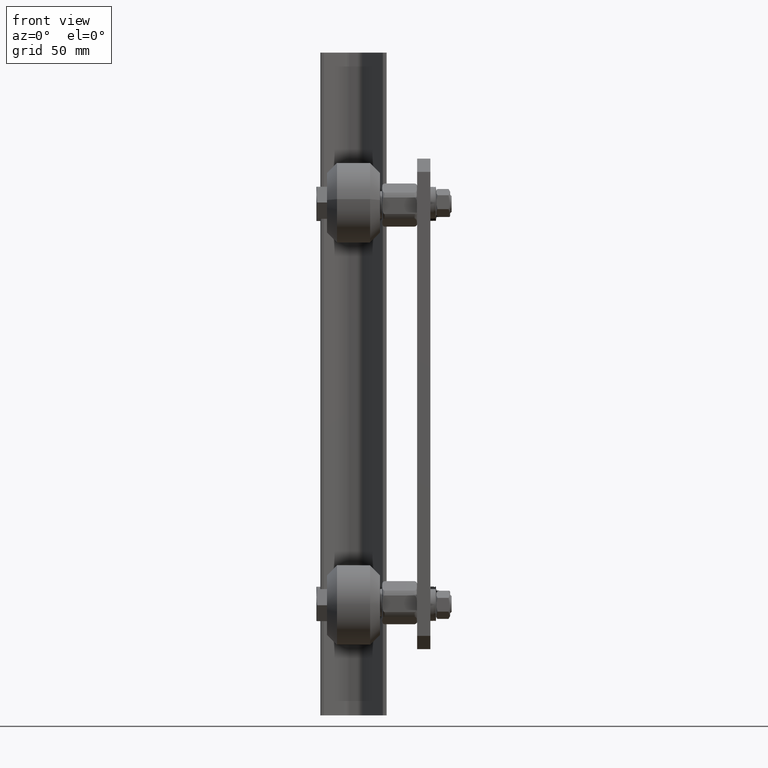
[diagram: clean part render]
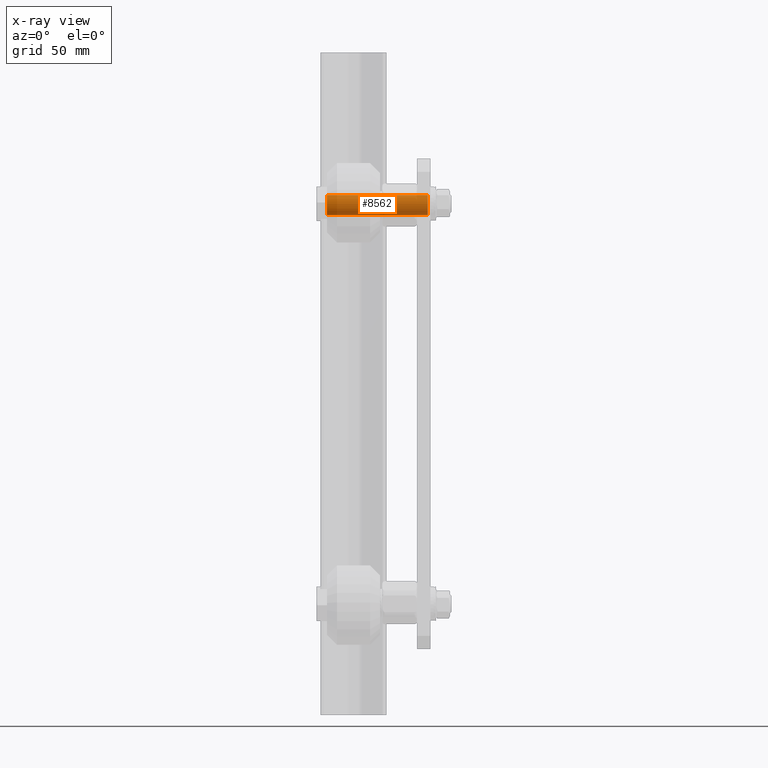
[diagram: x-ray — body ghosted, one internal face saturated and labeled with its STEP entity id]
A machine part, front view, then the same camera in x-ray: the body is ghosted and one INTERNAL B-rep face — a face not visible from any outside direction — is saturated and labeled: STEP entity #8562.
In plain terms, the highlighted cylindrical surface (bore or boss wall) has radius 7.5 mm, axis along (1, 0, 0).
Its self-contained STEP definition (entity closure, byte-faithful):
#520=CYLINDRICAL_SURFACE('',#9518,7.5);
#804=FACE_OUTER_BOUND('',#1293,.T.);
#1293=EDGE_LOOP('',(#6560,#6561,#6562,#6563));
#1757=CIRCLE('',#9517,7.5);
#1758=CIRCLE('',#9519,7.5);
#2374=LINE('',#14016,#3008);
#3008=VECTOR('',#11185,7.5);
#3657=VERTEX_POINT('',#14012);
#3658=VERTEX_POINT('',#14015);
#4714=EDGE_CURVE('',#3657,#3657,#1757,.T.);
#4715=EDGE_CURVE('',#3657,#3658,#2374,.T.);
#4716=EDGE_CURVE('',#3658,#3658,#1758,.T.);
#6560=ORIENTED_EDGE('',*,*,#4714,.T.);
#6561=ORIENTED_EDGE('',*,*,#4715,.T.);
#6562=ORIENTED_EDGE('',*,*,#4716,.F.);
#6563=ORIENTED_EDGE('',*,*,#4715,.F.);
#8562=ADVANCED_FACE('',(#804),#520,.T.);
#9517=AXIS2_PLACEMENT_3D('',#14013,#11181,#11182);
#9518=AXIS2_PLACEMENT_3D('',#14014,#11183,#11184);
#9519=AXIS2_PLACEMENT_3D('',#14017,#11186,#11187);
#11181=DIRECTION('center_axis',(0.,0.,1.));
#11182=DIRECTION('ref_axis',(1.,0.,0.));
#11183=DIRECTION('center_axis',(0.,0.,-1.));
#11184=DIRECTION('ref_axis',(1.,0.,0.));
#11185=DIRECTION('',(0.,0.,1.));
#11186=DIRECTION('center_axis',(0.,0.,1.));
#11187=DIRECTION('ref_axis',(1.,0.,0.));
#14012=CARTESIAN_POINT('',(-7.5,9.18485099360515E-16,-76.));
#14013=CARTESIAN_POINT('Origin',(0.,0.,-76.));
#14014=CARTESIAN_POINT('Origin',(0.,0.,0.));
#14015=CARTESIAN_POINT('',(-7.5,9.18485099360515E-16,0.));
#14016=CARTESIAN_POINT('',(-7.5,9.18485099360515E-16,0.));
#14017=CARTESIAN_POINT('Origin',(0.,0.,0.));